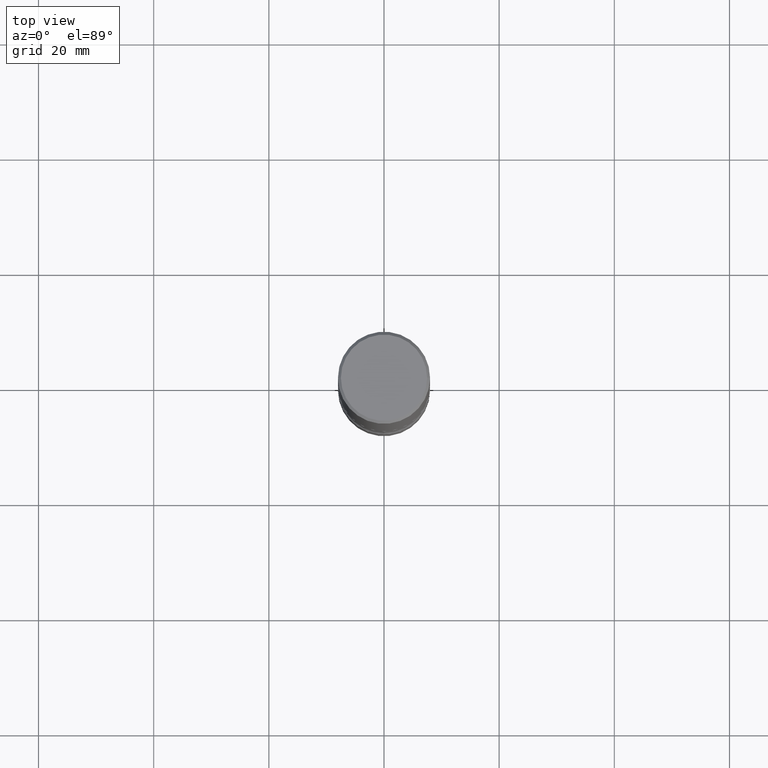
[diagram: clean part render]
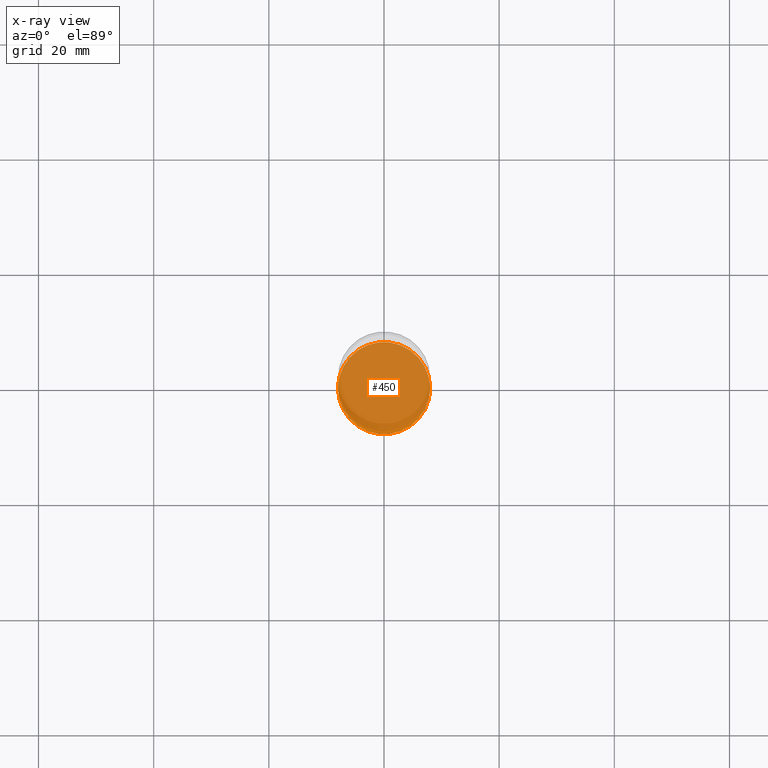
[diagram: x-ray — body ghosted, one internal face saturated and labeled with its STEP entity id]
A machine part, top view, then the same camera in x-ray: the body is ghosted and one INTERNAL B-rep face — a face not visible from any outside direction — is saturated and labeled: STEP entity #450.
In plain terms, the highlighted planar face has unit normal (0, -0, -1).
Its self-contained STEP definition (entity closure, byte-faithful):
#10 = ORIENTED_EDGE ( 'NONE', *, *, #482, .T. ) ;
#51 = CARTESIAN_POINT ( 'NONE',  ( 1.010932349788873450E-28, -1.443343470664368071E-14, -4.133899999999999686 ) ) ;
#85 = DIRECTION ( 'NONE',  ( -2.445468806185136597E-29, 3.491481338843145583E-15, 1.000000000000000000 ) ) ;
#150 = DIRECTION ( 'NONE',  ( -1.000000000000000000, 6.982962677686265922E-15, -4.876176775795935793E-29 ) ) ;
#181 = DIRECTION ( 'NONE',  ( 2.438088387897960049E-29, -3.491481338843145188E-15, -1.000000000000000000 ) ) ;
#244 = CARTESIAN_POINT ( 'NONE',  ( -0.3149500000000001743, -1.346019490129623240E-14, -4.133899999999999686 ) ) ;
#250 = CARTESIAN_POINT ( 'NONE',  ( 1.010932349788873450E-28, -1.443343470664368071E-14, -4.133899999999999686 ) ) ;
#251 = CIRCLE ( 'NONE', #378, 0.3149500000000001743 ) ;
#318 = FACE_OUTER_BOUND ( 'NONE', #362, .T. ) ;
#332 = DIRECTION ( 'NONE',  ( 1.000000000000000000, -6.982962677686265922E-15, 0.000000000000000000 ) ) ;
#341 = AXIS2_PLACEMENT_3D ( 'NONE', #51, #181, #150 ) ;
#362 = EDGE_LOOP ( 'NONE', ( #549, #10 ) ) ;
#378 = AXIS2_PLACEMENT_3D ( 'NONE', #250, #85, #557 ) ;
#415 = CIRCLE ( 'NONE', #484, 0.3149500000000001743 ) ;
#420 = VERTEX_POINT ( 'NONE', #456 ) ;
#430 = CARTESIAN_POINT ( 'NONE',  ( 1.010932349788873450E-28, -1.443343470664368071E-14, -4.133899999999999686 ) ) ;
#450 = ADVANCED_FACE ( 'NONE', ( #318 ), #547, .F. ) ;
#456 = CARTESIAN_POINT ( 'NONE',  ( 0.3149500000000001743, -1.663271880198097216E-14, -4.133899999999999686 ) ) ;
#461 = DIRECTION ( 'NONE',  ( -2.445468806185136597E-29, 3.491481338843145583E-15, 1.000000000000000000 ) ) ;
#482 = EDGE_CURVE ( 'NONE', #496, #420, #415, .T. ) ;
#484 = AXIS2_PLACEMENT_3D ( 'NONE', #430, #461, #332 ) ;
#496 = VERTEX_POINT ( 'NONE', #244 ) ;
#541 = EDGE_CURVE ( 'NONE', #420, #496, #251, .T. ) ;
#547 = PLANE ( 'NONE',  #341 ) ;
#549 = ORIENTED_EDGE ( 'NONE', *, *, #541, .T. ) ;
#557 = DIRECTION ( 'NONE',  ( 1.000000000000000000, -6.982962677686265922E-15, 0.000000000000000000 ) ) ;